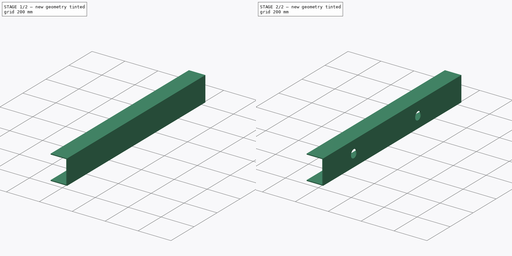
[diagram: build sequence overview — one tinted view per stage of 2, left to right]
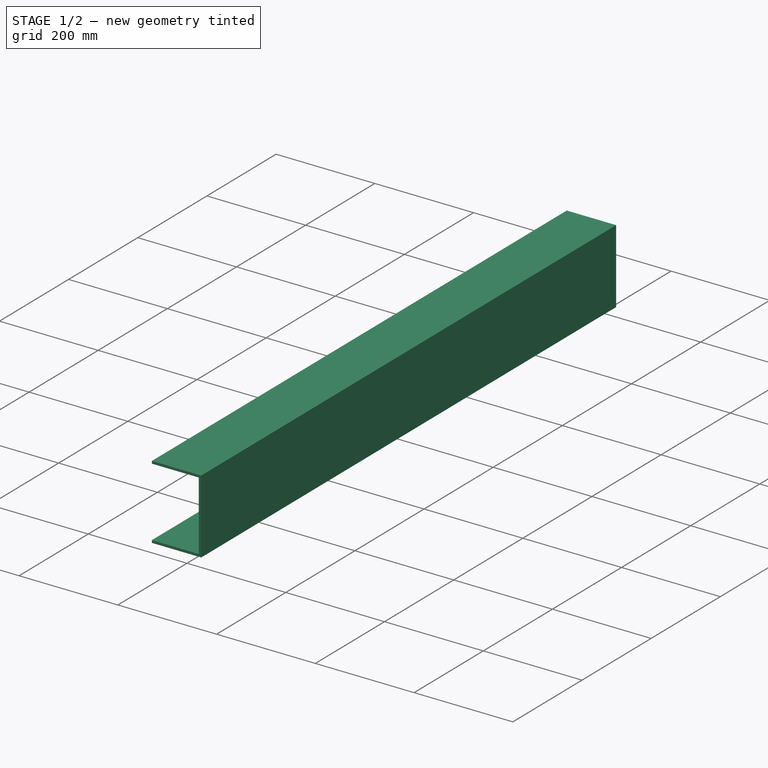
[diagram: stage 1 of 2 — iso view after this stage's code; geometry added in this stage tinted green]
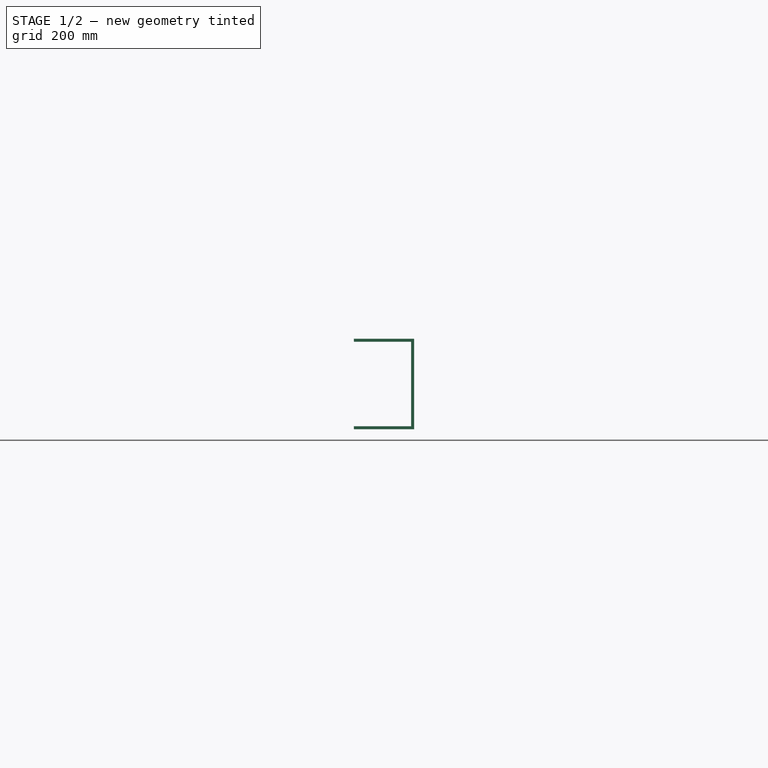
[diagram: stage 1 of 2 — front view after this stage's code; geometry added in this stage tinted green]
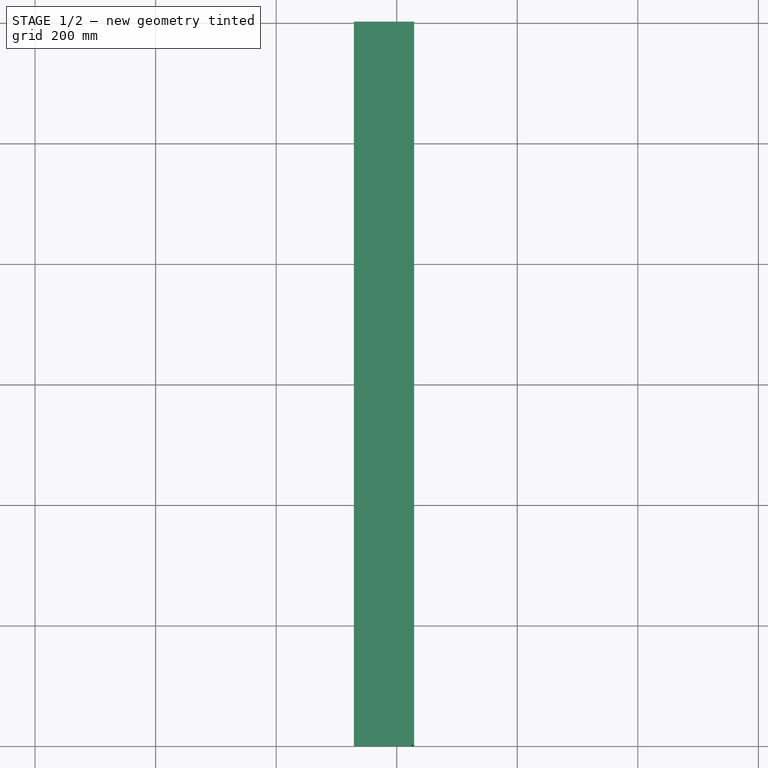
[diagram: stage 1 of 2 — top view after this stage's code; geometry added in this stage tinted green]
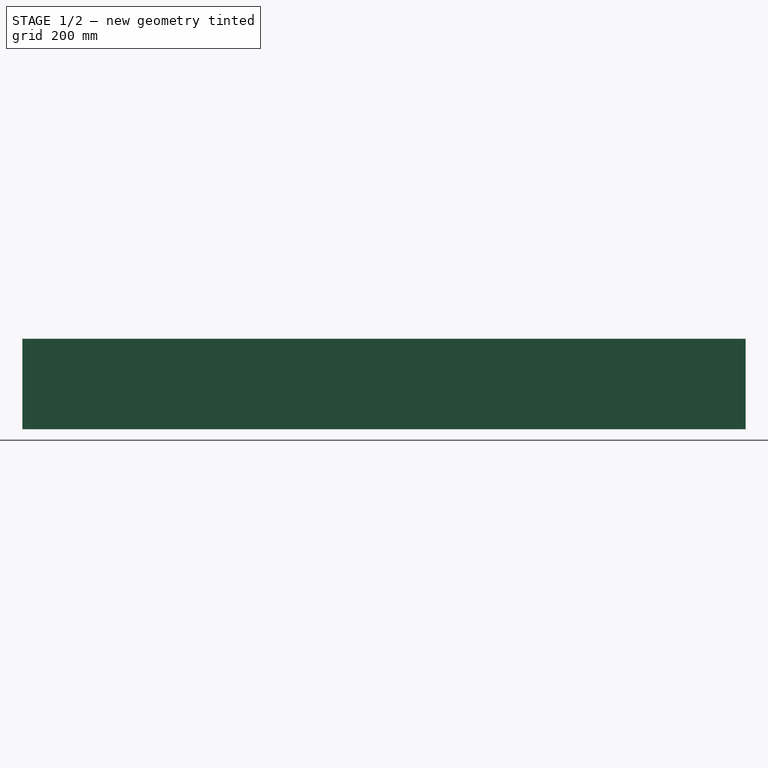
[diagram: stage 1 of 2 — right view after this stage's code; geometry added in this stage tinted green]
FCSTD DOCUMENT  (FreeCAD 0.20R29177 (Git))
Label: CSection1200Side
License: All rights reserved
LicenseURL: http://en.wikipedia.org/wiki/All_rights_reserved
objects: Sketcher::SketchObject×2, PartDesign::Pad×1, PartDesign::Plane×1, PartDesign::Pocket×1, PartDesign::Body×1
note: 8 computed .brp shape members not serialized (recipe doc carries the construction recipe); baked Part::Feature solids carry a one-line shape summary decoded from their .brp

FEATURE [Sketcher::SketchObject] Sketch
  FullyConstrained = false
  MapMode = 5
  Placement = pos=(0,0,0) rot=(1,0,0;1.5708rad)
  Support = -> [XZ_Plane]
  sketch-geometry (8):
    g0: LineSegment StartX=-71.1202 StartY=50.8075 StartZ=0 EndX=23.8798 EndY=50.8075 EndZ=0
    g1: LineSegment StartX=23.8798 StartY=50.8075 StartZ=0 EndX=23.8798 EndY=-89.1925 EndZ=0
    g2: LineSegment StartX=23.8798 StartY=-89.1925 StartZ=0 EndX=-71.1202 EndY=-89.1925 EndZ=0
    g3: LineSegment StartX=-71.1202 StartY=-89.1925 StartZ=0 EndX=-71.1202 EndY=-94.1925 EndZ=0
    g4: LineSegment StartX=-71.1202 StartY=-94.1925 StartZ=0 EndX=28.8798 EndY=-94.1925 EndZ=0
    g5: LineSegment StartX=28.8798 StartY=-94.1925 StartZ=0 EndX=28.8798 EndY=55.8075 EndZ=0
    g6: LineSegment StartX=28.8798 StartY=55.8075 StartZ=0 EndX=-71.1202 EndY=55.8075 EndZ=0
    g7: LineSegment StartX=-71.1202 StartY=55.8075 StartZ=0 EndX=-71.1202 EndY=50.8075 EndZ=0
  constraints (22):
    c: Horizontal(g0)
    c: Coincident(g0,g1)
    c: Vertical(g1)
    c: Coincident(g1,g2)
    c: Horizontal(g2)
    c: Coincident(g2,g3)
    c: Vertical(g3)
    c: Coincident(g3,g4)
    c: Horizontal(g4)
    c: Coincident(g4,g5)
    c: Vertical(g5)
    c: Coincident(g5,g6)
    c: Horizontal(g6)
    c: Coincident(g6,g7)
    c: Coincident(g7,g0)
    c: Vertical(g7)
    c: DistanceY(g5,g5) = 150
    c: DistanceY(g1,g1) = 140
    c: DistanceY(g3,g3) = 5
    c: DistanceX(g4,g4) = 100
    c: DistanceX(g6,g6) = 100
    c: DistanceX(g2,g2) = 95
FEATURE [PartDesign::Pad] Pad
  Direction = (0,-1,2e-16)
  Length = 1200
  Length2 = 10
  Placement = pos=(0,0,0) rot=(1,0,0;1.5708rad)
  Profile = -> Sketch
  ReferenceAxis = -> Sketch [N_Axis]
  Type = 0
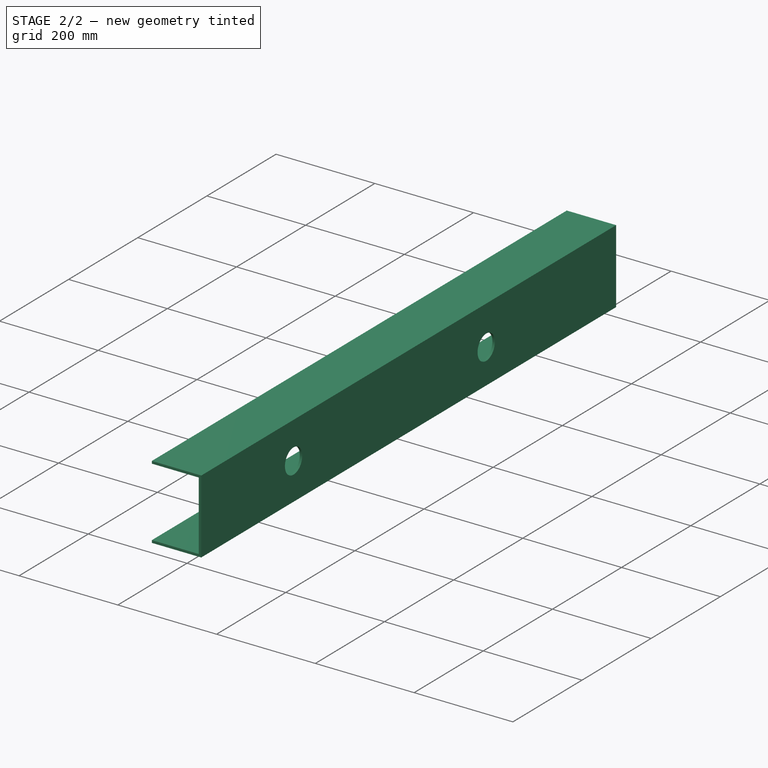
[diagram: stage 2 of 2 — iso view after this stage's code; geometry added in this stage tinted green]
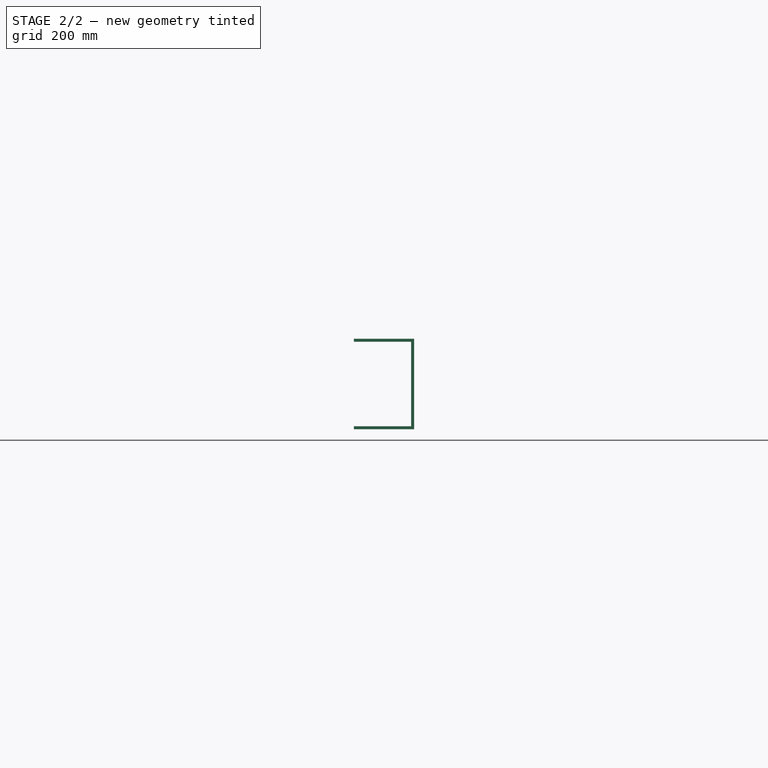
[diagram: stage 2 of 2 — front view after this stage's code; geometry added in this stage tinted green]
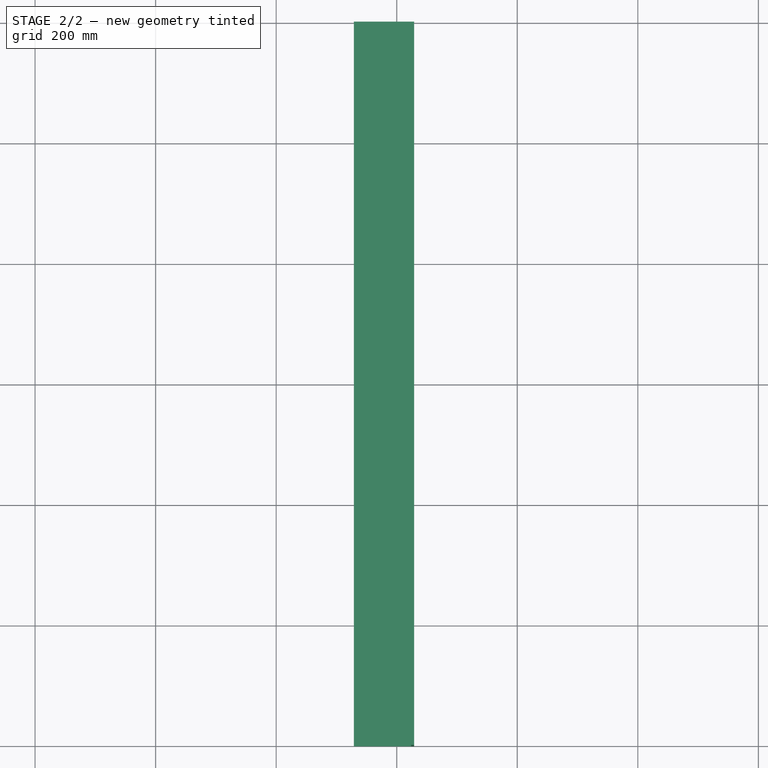
[diagram: stage 2 of 2 — top view after this stage's code; geometry added in this stage tinted green]
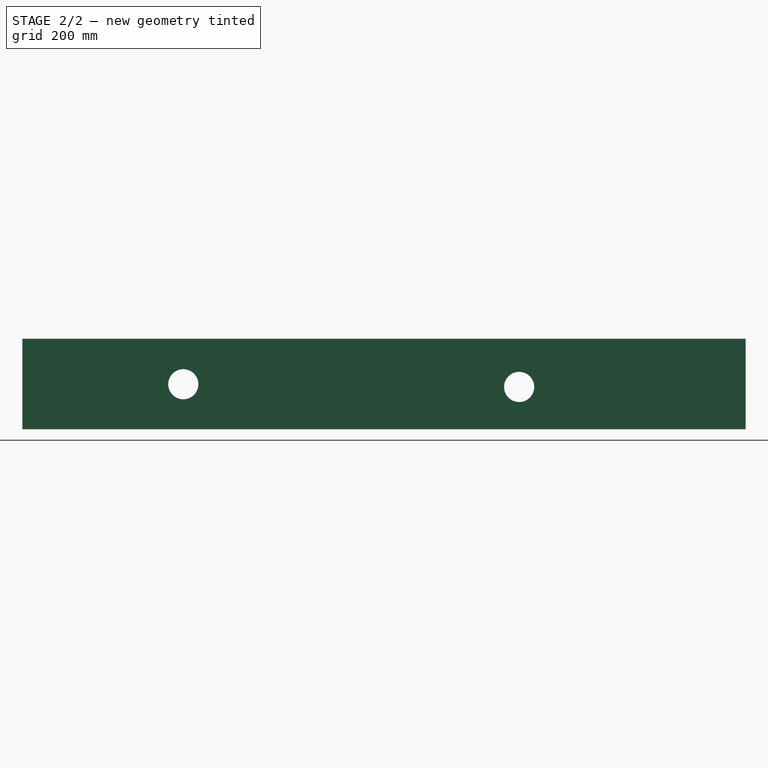
[diagram: stage 2 of 2 — right view after this stage's code; geometry added in this stage tinted green]
FEATURE [PartDesign::Plane] DatumPlane
  Length = 235.732
  MapMode = 5
  Placement = pos=(28.8798,0,0) rot=(0.707107,0,0.707107;3.14159rad)
  ResizeMode = 0
  Support = -> [Pad]
  Width = 1310.73
FEATURE [Sketcher::SketchObject] Sketch001
  FullyConstrained = false
  MapMode = 5
  Placement = pos=(28.8798,0,0) rot=(0.707107,0,0.707107;3.14159rad)
  Support = -> [DatumPlane]
  sketch-geometry (2):
    g0: Circle CenterX=-19.58 CenterY=932.952 CenterZ=0 NormalX=0 NormalY=0 NormalZ=1 AngleXU=0 Radius=25
    g1: Circle CenterX=-24.0854 CenterY=375.786 CenterZ=0 NormalX=0 NormalY=0 NormalZ=1 AngleXU=0 Radius=25
  constraints (2):
    c: Diameter(g0) = 50
    c: Diameter(g1) = 50
FEATURE [PartDesign::Pocket] Pocket
  BaseFeature = -> Pad
  Direction = (-1,0,2e-16)
  Length = 11
  Length2 = 5
  Placement = pos=(0,0,0) rot=(1,0,0;1.5708rad)
  Profile = -> Sketch001
  ReferenceAxis = -> Sketch001 [N_Axis]
  Type = 0
FEATURE [PartDesign::Body] Body
  Group = -> [Sketch,Pad,DatumPlane,Sketch001,Pocket]
  Origin = -> Origin
  Tip = -> Pocket
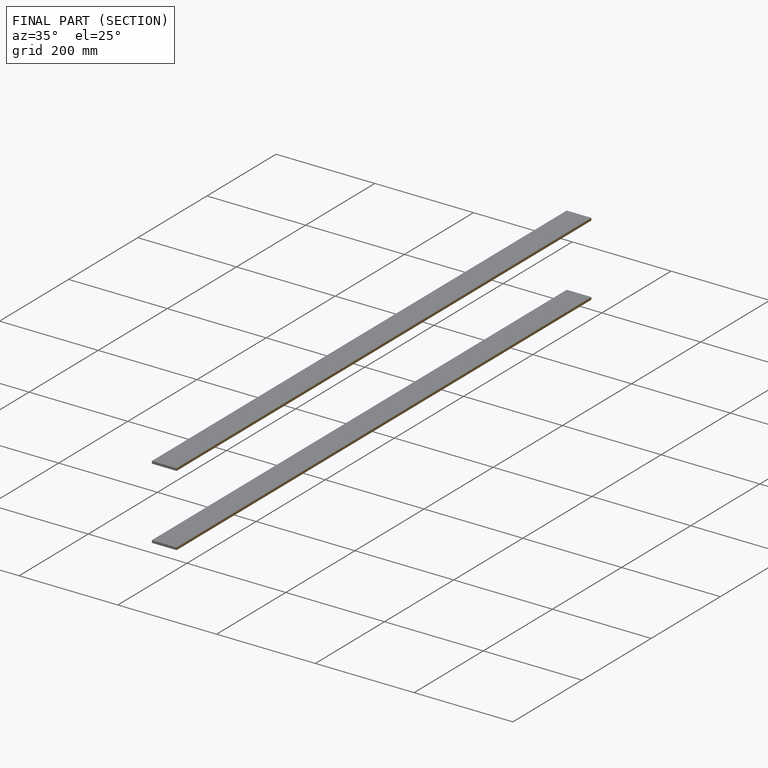
[diagram: finished part — half-section view (interior)]
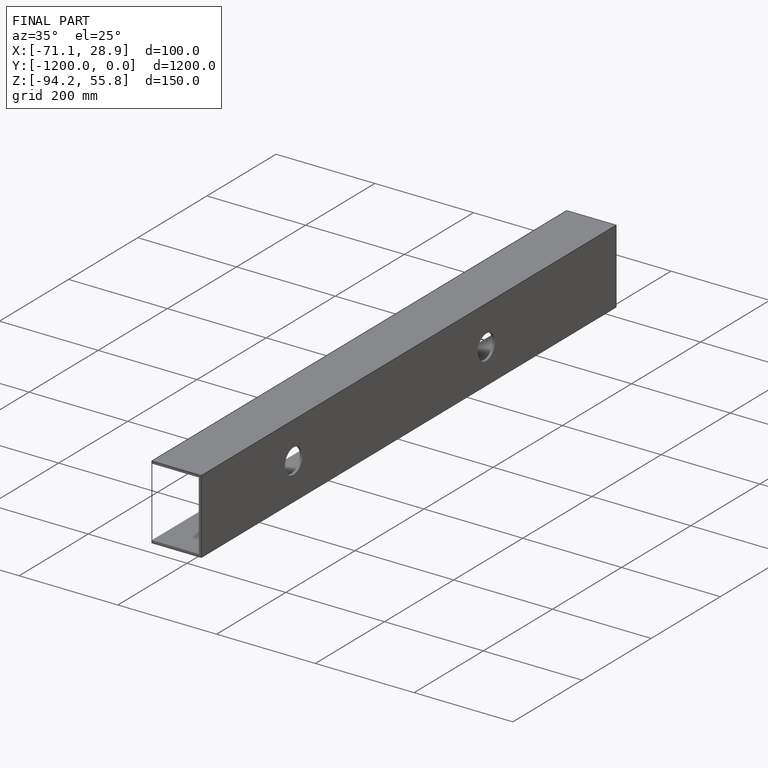
[diagram: finished part — iso view with bounding-box wireframe]
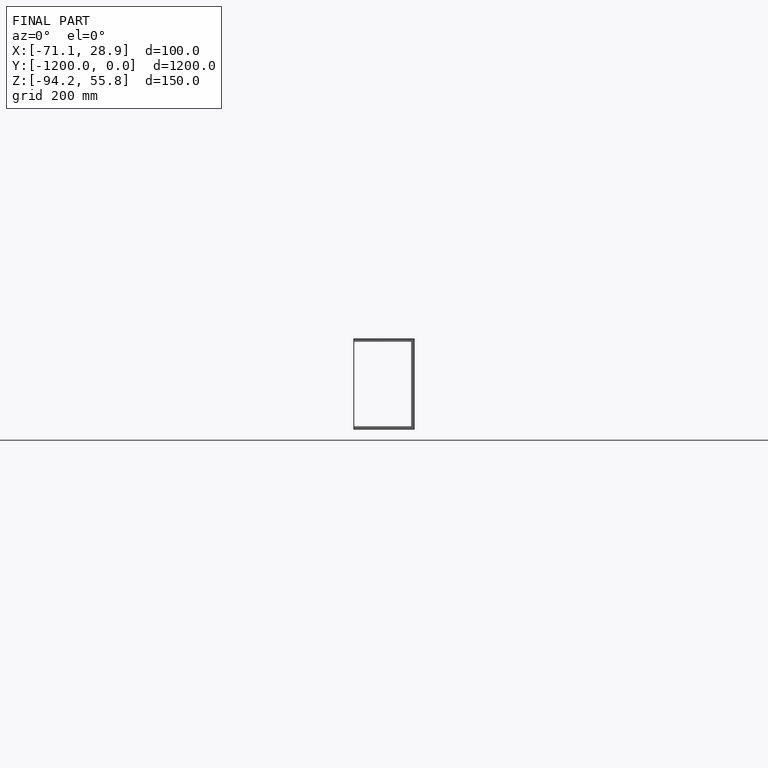
[diagram: finished part — front view with bounding-box wireframe]
